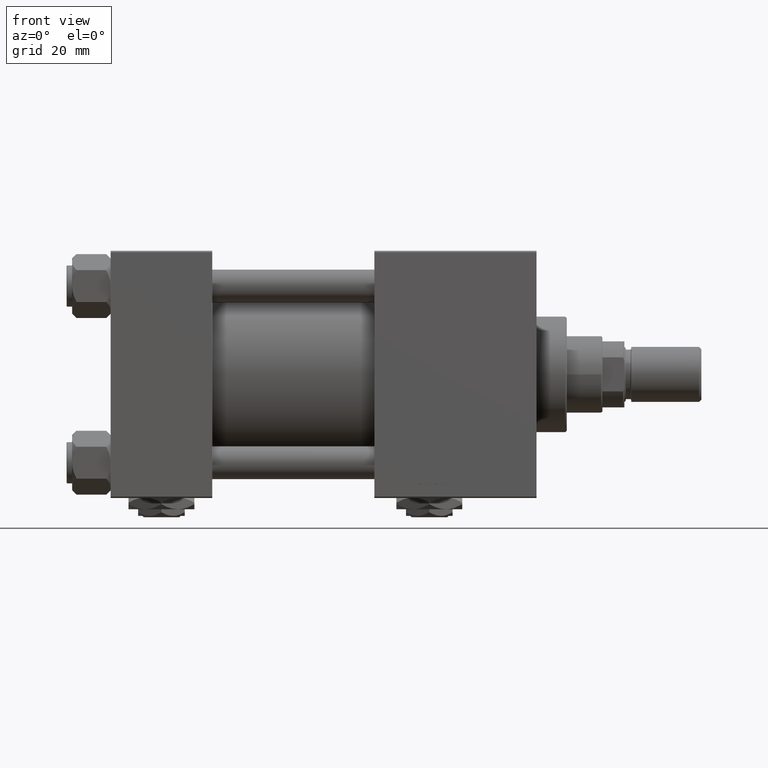
[diagram: clean part render]
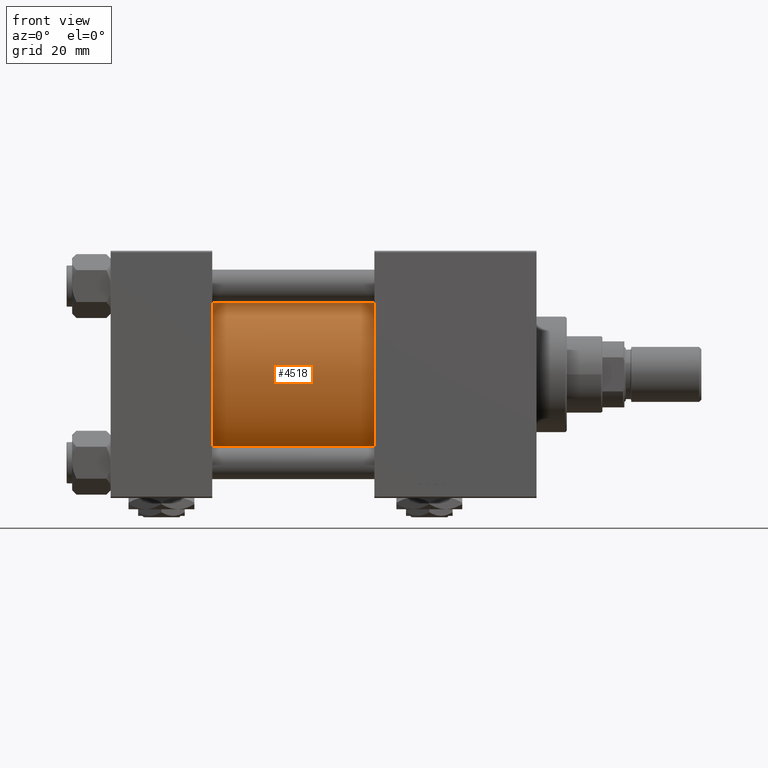
[diagram: same view with one face highlighted and labeled with its STEP entity id]
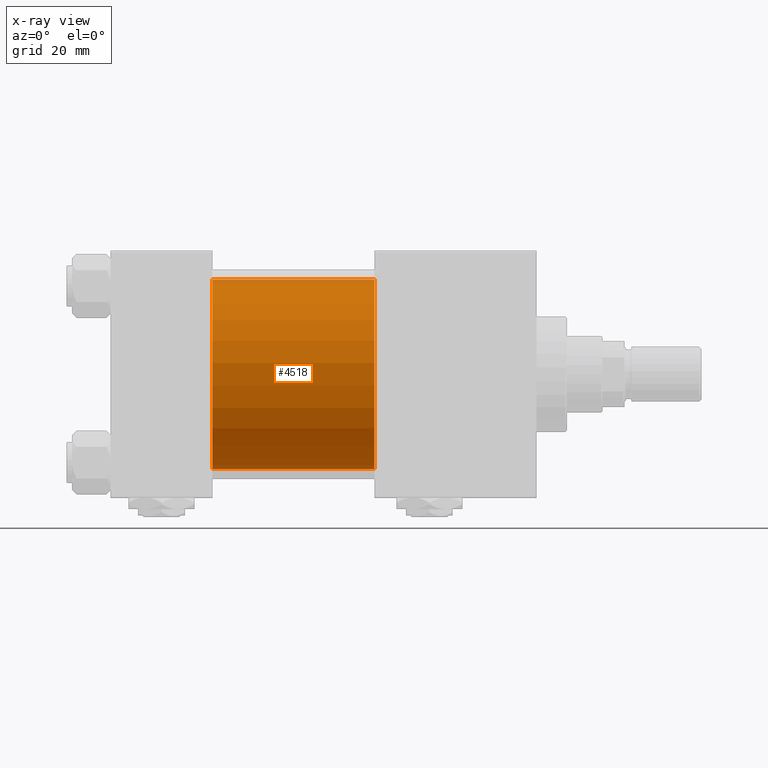
[diagram: x-ray of the same camera — body ghosted, the highlighted face saturated]
A machine part, front view. The second image highlights one B-rep face of the part: STEP entity #4518.
The next image is the same camera in x-ray: the body ghosted, the highlighted face saturated — about 4% of this face is hidden behind the body in this view.
In plain terms, the highlighted cylindrical surface (partial cylindrical patch) has radius 34.5 mm, axis along (-1, -0, -0).
Its self-contained STEP definition (entity closure, byte-faithful):
#146 = EDGE_CURVE ( 'NONE', #40613, #33786, #21875, .T. ) ;
#2289 = ORIENTED_EDGE ( 'NONE', *, *, #146, .F. ) ;
#2360 = DIRECTION ( 'NONE',  ( -1.000000000000000000, -0.000000000000000000, -0.000000000000000000 ) ) ;
#3463 = CARTESIAN_POINT ( 'NONE',  ( 96.00000000000000000, -2.602085213965210642E-15, 0.000000000000000000 ) ) ;
#4518 = ADVANCED_FACE ( 'NONE', ( #8004 ), #40005, .T. ) ;
#8004 = FACE_OUTER_BOUND ( 'NONE', #33442, .T. ) ;
#8430 = CARTESIAN_POINT ( 'NONE',  ( 37.00000000000000000, -2.602085213965210642E-15, 34.50000000000000000 ) ) ;
#9808 = CARTESIAN_POINT ( 'NONE',  ( 96.00000000000000000, 1.622946243093158675E-15, -34.50000000000000000 ) ) ;
#10991 = CARTESIAN_POINT ( 'NONE',  ( 96.00000000000000000, -2.602085213965210642E-15, 0.000000000000000000 ) ) ;
#15731 = DIRECTION ( 'NONE',  ( -1.000000000000000000, -0.000000000000000000, -0.000000000000000000 ) ) ;
#15783 = DIRECTION ( 'NONE',  ( 0.000000000000000000, 0.000000000000000000, 1.000000000000000000 ) ) ;
#15810 = CARTESIAN_POINT ( 'NONE',  ( 96.00000000000000000, 1.622946243093158675E-15, -34.50000000000000000 ) ) ;
#20841 = AXIS2_PLACEMENT_3D ( 'NONE', #22994, #31530, #15783 ) ;
#21492 = EDGE_CURVE ( 'NONE', #30110, #41072, #23393, .T. ) ;
#21875 = CIRCLE ( 'NONE', #50882, 34.50000000000000000 ) ;
#22123 = ORIENTED_EDGE ( 'NONE', *, *, #29071, .T. ) ;
#22629 = LINE ( 'NONE', #38894, #44552 ) ;
#22994 = CARTESIAN_POINT ( 'NONE',  ( 37.00000000000000000, -2.602085213965210642E-15, 0.000000000000000000 ) ) ;
#23393 = CIRCLE ( 'NONE', #20841, 34.50000000000000000 ) ;
#25455 = AXIS2_PLACEMENT_3D ( 'NONE', #3463, #15731, #32010 ) ;
#26795 = CARTESIAN_POINT ( 'NONE',  ( 37.00000000000000000, 1.622946243093158675E-15, -34.50000000000000000 ) ) ;
#27248 = DIRECTION ( 'NONE',  ( 1.000000000000000000, 0.000000000000000000, 0.000000000000000000 ) ) ;
#29071 = EDGE_CURVE ( 'NONE', #40613, #30110, #22629, .T. ) ;
#30110 = VERTEX_POINT ( 'NONE', #8430 ) ;
#31530 = DIRECTION ( 'NONE',  ( 1.000000000000000000, -0.000000000000000000, 0.000000000000000000 ) ) ;
#32010 = DIRECTION ( 'NONE',  ( 0.000000000000000000, 0.000000000000000000, 1.000000000000000000 ) ) ;
#33442 = EDGE_LOOP ( 'NONE', ( #52050, #2289, #22123, #44676 ) ) ;
#33786 = VERTEX_POINT ( 'NONE', #15810 ) ;
#36320 = CARTESIAN_POINT ( 'NONE',  ( 96.00000000000000000, -2.602085213965210642E-15, 34.50000000000000000 ) ) ;
#38541 = EDGE_CURVE ( 'NONE', #33786, #41072, #42855, .T. ) ;
#38894 = CARTESIAN_POINT ( 'NONE',  ( 96.00000000000000000, -2.602085213965210642E-15, 34.50000000000000000 ) ) ;
#39516 = DIRECTION ( 'NONE',  ( 0.000000000000000000, 0.000000000000000000, -1.000000000000000000 ) ) ;
#40005 = CYLINDRICAL_SURFACE ( 'NONE', #25455, 34.50000000000000000 ) ;
#40613 = VERTEX_POINT ( 'NONE', #36320 ) ;
#41072 = VERTEX_POINT ( 'NONE', #26795 ) ;
#42855 = LINE ( 'NONE', #9808, #45634 ) ;
#44552 = VECTOR ( 'NONE', #2360, 1000.000000000000000 ) ;
#44676 = ORIENTED_EDGE ( 'NONE', *, *, #21492, .T. ) ;
#45634 = VECTOR ( 'NONE', #46350, 1000.000000000000000 ) ;
#46350 = DIRECTION ( 'NONE',  ( -1.000000000000000000, -0.000000000000000000, -0.000000000000000000 ) ) ;
#50882 = AXIS2_PLACEMENT_3D ( 'NONE', #10991, #27248, #39516 ) ;
#52050 = ORIENTED_EDGE ( 'NONE', *, *, #38541, .F. ) ;